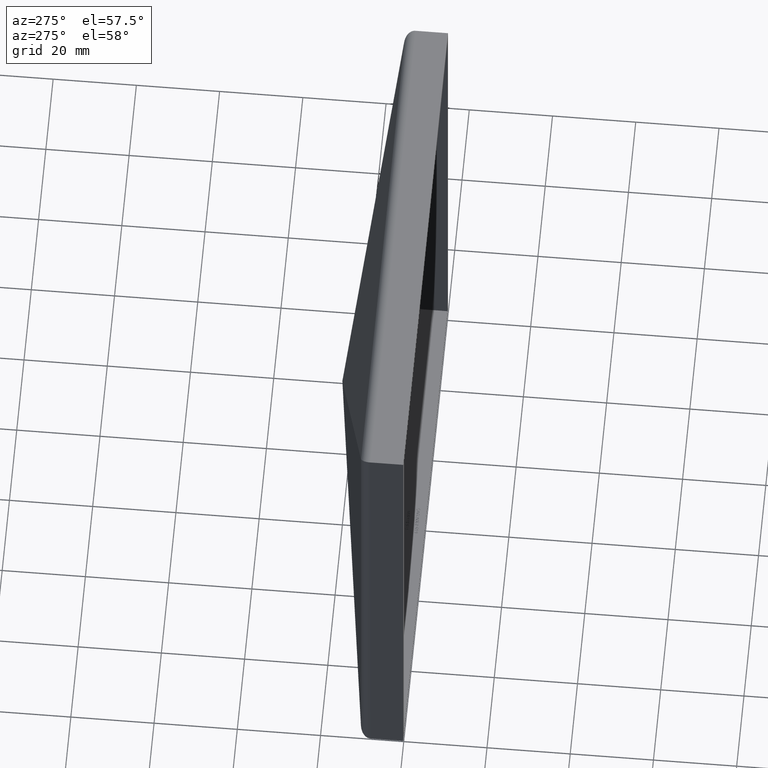
[diagram: clean part render]
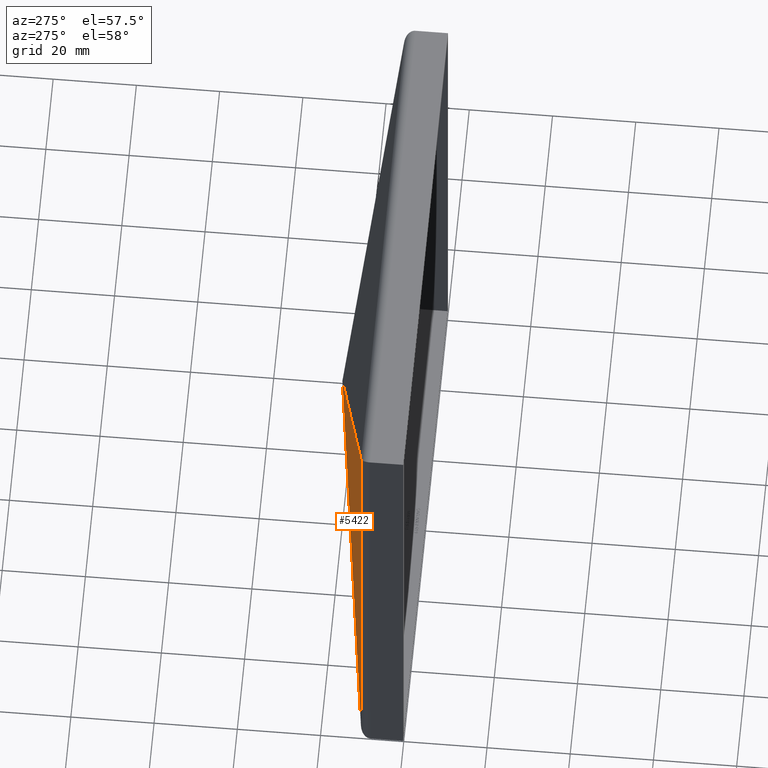
[diagram: same view with one face highlighted and labeled with its STEP entity id]
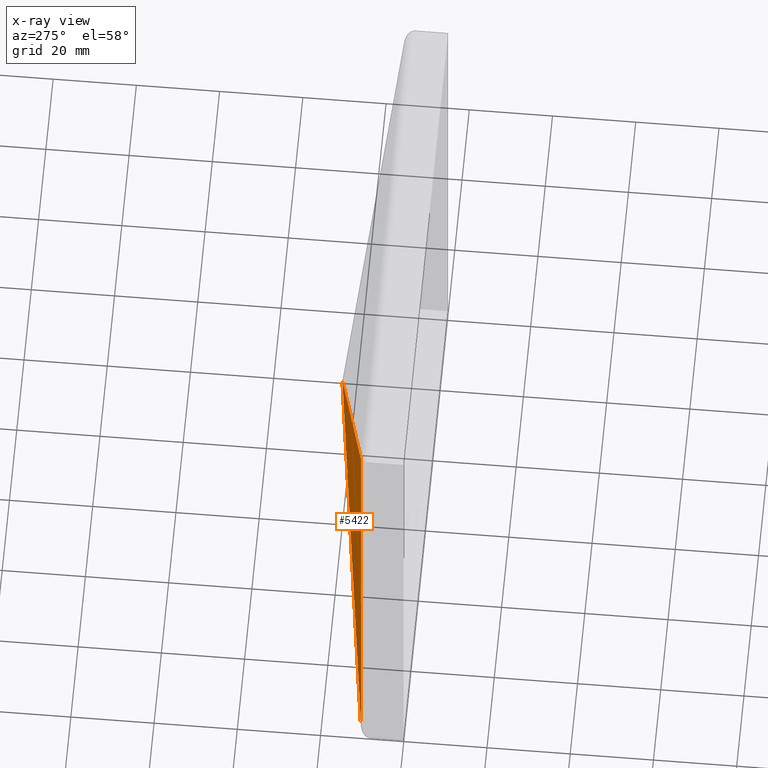
[diagram: x-ray of the same camera — body ghosted, the highlighted face saturated]
A machine part, auxiliary view. The second image highlights one B-rep face of the part: STEP entity #5422.
The next image is the same camera in x-ray: the body ghosted, the highlighted face saturated — about 0% of this face is hidden behind the body in this view.
In plain terms, the highlighted planar face has unit normal (0.1605, -0.987, 0).
Its self-contained STEP definition (entity closure, byte-faithful):
#114 = DIRECTION ( 'NONE',  ( -0.7024775622906045400, -0.1142389992800061600, 0.7024775622906063200 ) ) ;
#226 = ORIENTED_EDGE ( 'NONE', *, *, #10439, .F. ) ;
#259 = EDGE_LOOP ( 'NONE', ( #4942, #4378, #226, #3620 ) ) ;
#271 = DIRECTION ( 'NONE',  ( 0.9870335088309785100, 0.1605143371939299900, 0.0000000000000000000 ) ) ;
#272 = VECTOR ( 'NONE', #5379, 1000.000000000000100 ) ;
#1211 = PLANE ( 'NONE',  #8978 ) ;
#1226 = CARTESIAN_POINT ( 'NONE',  ( -59.40128584298540200, 10.34129916447486700, 59.40128584298489000 ) ) ;
#1323 = CARTESIAN_POINT ( 'NONE',  ( -59.40128584298484800, 10.34129916447495900, -59.40128584298481900 ) ) ;
#1594 = CARTESIAN_POINT ( 'NONE',  ( -0.01605143371939319500, 19.99870335088310100, -61.50000000000000000 ) ) ;
#1633 = DIRECTION ( 'NONE',  ( -0.0000000000000000000, -0.0000000000000000000, 1.000000000000000000 ) ) ;
#1896 = VERTEX_POINT ( 'NONE', #1323 ) ;
#2058 = VERTEX_POINT ( 'NONE', #1226 ) ;
#2680 = CARTESIAN_POINT ( 'NONE',  ( -59.40128584298484800, 10.34129916447495700, -61.50000000000000000 ) ) ;
#2987 = VECTOR ( 'NONE', #9721, 1000.000000000000000 ) ;
#3111 = CARTESIAN_POINT ( 'NONE',  ( -0.01605143371940075100, 19.99870335088310100, 0.01605143371940983400 ) ) ;
#3620 = ORIENTED_EDGE ( 'NONE', *, *, #12945, .F. ) ;
#4378 = ORIENTED_EDGE ( 'NONE', *, *, #12037, .T. ) ;
#4700 = VECTOR ( 'NONE', #1633, 1000.000000000000000 ) ;
#4942 = ORIENTED_EDGE ( 'NONE', *, *, #7428, .F. ) ;
#5239 = VECTOR ( 'NONE', #114, 1000.000000000000000 ) ;
#5379 = DIRECTION ( 'NONE',  ( 0.7024775622906054300, 0.1142389992800062800, 0.7024775622906052100 ) ) ;
#5422 = ADVANCED_FACE ( 'NONE', ( #7752 ), #1211, .F. ) ;
#5427 = DIRECTION ( 'NONE',  ( 0.1605143371939299900, -0.9870335088309785100, 0.0000000000000000000 ) ) ;
#5665 = LINE ( 'NONE', #2680, #2987 ) ;
#6371 = CARTESIAN_POINT ( 'NONE',  ( -59.40128584298484800, 10.34129916447495700, -61.50000000000000000 ) ) ;
#6916 = CARTESIAN_POINT ( 'NONE',  ( 0.2604430036089802600, 20.04366770209154000, -0.2604430036089872000 ) ) ;
#6979 = CARTESIAN_POINT ( 'NONE',  ( -0.01605143371940370700, 19.99870335088310100, -0.01605143371939318800 ) ) ;
#7411 = LINE ( 'NONE', #11472, #272 ) ;
#7428 = EDGE_CURVE ( 'NONE', #1896, #8435, #7411, .T. ) ;
#7719 = VERTEX_POINT ( 'NONE', #3111 ) ;
#7752 = FACE_OUTER_BOUND ( 'NONE', #259, .T. ) ;
#8435 = VERTEX_POINT ( 'NONE', #6979 ) ;
#8978 = AXIS2_PLACEMENT_3D ( 'NONE', #6371, #5427, #271 ) ;
#9721 = DIRECTION ( 'NONE',  ( -0.0000000000000000000, -0.0000000000000000000, 1.000000000000000000 ) ) ;
#10439 = EDGE_CURVE ( 'NONE', #7719, #2058, #11492, .T. ) ;
#11472 = CARTESIAN_POINT ( 'NONE',  ( -60.43694823556652600, 10.17287665296487000, -60.43694823556650400 ) ) ;
#11492 = LINE ( 'NONE', #6916, #5239 ) ;
#12037 = EDGE_CURVE ( 'NONE', #1896, #2058, #5665, .T. ) ;
#12055 = LINE ( 'NONE', #1594, #4700 ) ;
#12945 = EDGE_CURVE ( 'NONE', #8435, #7719, #12055, .T. ) ;